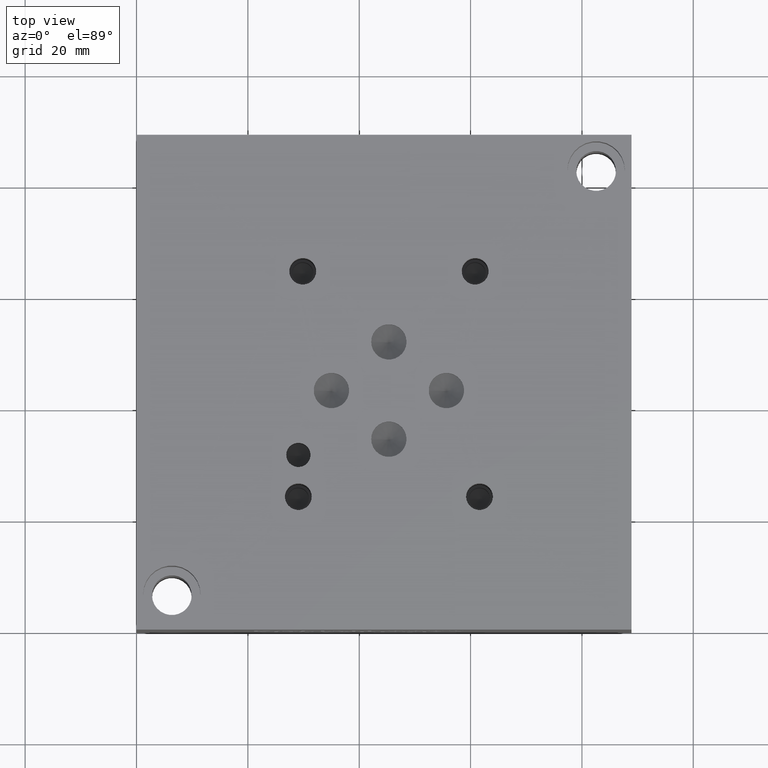
[diagram: clean part render]
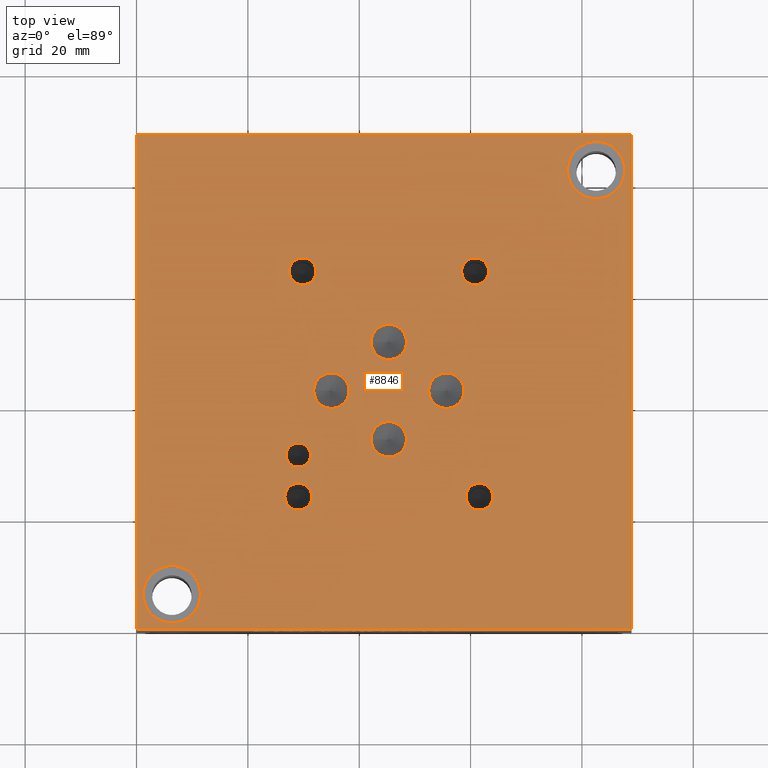
[diagram: same view with one face highlighted and labeled with its STEP entity id]
A machine part, top view. The second image highlights one B-rep face of the part: STEP entity #8846.
In plain terms, the highlighted planar face has unit normal (0, 0, 1).
Its self-contained STEP definition (entity closure, byte-faithful):
#85=CIRCLE('',#9174,5.1562);
#86=CIRCLE('',#9175,5.1562);
#90=CIRCLE('',#9182,5.1562);
#91=CIRCLE('',#9183,5.1562);
#94=CIRCLE('',#9189,3.175);
#95=CIRCLE('',#9190,3.175);
#98=CIRCLE('',#9195,3.175);
#99=CIRCLE('',#9196,3.175);
#102=CIRCLE('',#9201,3.175);
#103=CIRCLE('',#9202,3.175);
#106=CIRCLE('',#9207,3.175);
#107=CIRCLE('',#9208,3.175);
#110=CIRCLE('',#9213,2.1844);
#111=CIRCLE('',#9214,2.1844);
#117=CIRCLE('',#9223,2.413);
#118=CIRCLE('',#9224,2.413);
#124=CIRCLE('',#9234,2.413);
#125=CIRCLE('',#9235,2.413);
#131=CIRCLE('',#9245,2.413);
#132=CIRCLE('',#9246,2.413);
#138=CIRCLE('',#9256,2.413);
#139=CIRCLE('',#9257,2.413);
#193=FACE_BOUND('',#1431,.T.);
#194=FACE_BOUND('',#1432,.T.);
#195=FACE_BOUND('',#1433,.T.);
#196=FACE_BOUND('',#1434,.T.);
#197=FACE_BOUND('',#1435,.T.);
#198=FACE_BOUND('',#1436,.T.);
#199=FACE_BOUND('',#1437,.T.);
#200=FACE_BOUND('',#1438,.T.);
#201=FACE_BOUND('',#1439,.T.);
#202=FACE_BOUND('',#1440,.T.);
#203=FACE_BOUND('',#1441,.T.);
#479=PLANE('',#9263);
#928=FACE_OUTER_BOUND('',#1430,.T.);
#1430=EDGE_LOOP('',(#7855,#7856,#7857,#7858));
#1431=EDGE_LOOP('',(#7859,#7860));
#1432=EDGE_LOOP('',(#7861,#7862));
#1433=EDGE_LOOP('',(#7863,#7864));
#1434=EDGE_LOOP('',(#7865,#7866));
#1435=EDGE_LOOP('',(#7867,#7868));
#1436=EDGE_LOOP('',(#7869,#7870));
#1437=EDGE_LOOP('',(#7871,#7872));
#1438=EDGE_LOOP('',(#7873,#7874));
#1439=EDGE_LOOP('',(#7875,#7876));
#1440=EDGE_LOOP('',(#7877,#7878));
#1441=EDGE_LOOP('',(#7879,#7880));
#1877=LINE('',#13979,#2733);
#2294=LINE('',#15147,#3150);
#2296=LINE('',#15151,#3152);
#2298=LINE('',#15154,#3154);
#2733=VECTOR('',#9959,10.);
#3150=VECTOR('',#10914,10.);
#3152=VECTOR('',#10918,10.);
#3154=VECTOR('',#10922,10.);
#3891=VERTEX_POINT('',#13976);
#3892=VERTEX_POINT('',#13978);
#4182=VERTEX_POINT('',#14970);
#4183=VERTEX_POINT('',#14971);
#4187=VERTEX_POINT('',#14985);
#4188=VERTEX_POINT('',#14986);
#4192=VERTEX_POINT('',#15000);
#4193=VERTEX_POINT('',#15001);
#4197=VERTEX_POINT('',#15013);
#4198=VERTEX_POINT('',#15014);
#4202=VERTEX_POINT('',#15026);
#4203=VERTEX_POINT('',#15027);
#4207=VERTEX_POINT('',#15039);
#4208=VERTEX_POINT('',#15040);
#4212=VERTEX_POINT('',#15052);
#4213=VERTEX_POINT('',#15053);
#4220=VERTEX_POINT('',#15072);
#4221=VERTEX_POINT('',#15073);
#4228=VERTEX_POINT('',#15094);
#4229=VERTEX_POINT('',#15095);
#4236=VERTEX_POINT('',#15116);
#4237=VERTEX_POINT('',#15117);
#4244=VERTEX_POINT('',#15138);
#4245=VERTEX_POINT('',#15139);
#4246=VERTEX_POINT('',#15146);
#4247=VERTEX_POINT('',#15150);
#4944=EDGE_CURVE('',#3892,#3891,#1877,.T.);
#5374=EDGE_CURVE('',#4182,#4183,#85,.T.);
#5375=EDGE_CURVE('',#4183,#4182,#86,.T.);
#5381=EDGE_CURVE('',#4187,#4188,#90,.T.);
#5382=EDGE_CURVE('',#4188,#4187,#91,.T.);
#5388=EDGE_CURVE('',#4192,#4193,#94,.T.);
#5389=EDGE_CURVE('',#4193,#4192,#95,.T.);
#5394=EDGE_CURVE('',#4197,#4198,#98,.T.);
#5395=EDGE_CURVE('',#4198,#4197,#99,.T.);
#5400=EDGE_CURVE('',#4202,#4203,#102,.T.);
#5401=EDGE_CURVE('',#4203,#4202,#103,.T.);
#5406=EDGE_CURVE('',#4207,#4208,#106,.T.);
#5407=EDGE_CURVE('',#4208,#4207,#107,.T.);
#5412=EDGE_CURVE('',#4212,#4213,#110,.T.);
#5413=EDGE_CURVE('',#4213,#4212,#111,.T.);
#5421=EDGE_CURVE('',#4220,#4221,#117,.T.);
#5422=EDGE_CURVE('',#4221,#4220,#118,.T.);
#5431=EDGE_CURVE('',#4228,#4229,#124,.T.);
#5432=EDGE_CURVE('',#4229,#4228,#125,.T.);
#5441=EDGE_CURVE('',#4236,#4237,#131,.T.);
#5442=EDGE_CURVE('',#4237,#4236,#132,.T.);
#5451=EDGE_CURVE('',#4244,#4245,#138,.T.);
#5452=EDGE_CURVE('',#4245,#4244,#139,.T.);
#5455=EDGE_CURVE('',#4246,#3892,#2294,.T.);
#5457=EDGE_CURVE('',#4247,#4246,#2296,.T.);
#5459=EDGE_CURVE('',#3891,#4247,#2298,.T.);
#7855=ORIENTED_EDGE('',*,*,#4944,.T.);
#7856=ORIENTED_EDGE('',*,*,#5459,.T.);
#7857=ORIENTED_EDGE('',*,*,#5457,.T.);
#7858=ORIENTED_EDGE('',*,*,#5455,.T.);
#7859=ORIENTED_EDGE('',*,*,#5374,.T.);
#7860=ORIENTED_EDGE('',*,*,#5375,.T.);
#7861=ORIENTED_EDGE('',*,*,#5381,.T.);
#7862=ORIENTED_EDGE('',*,*,#5382,.T.);
#7863=ORIENTED_EDGE('',*,*,#5388,.T.);
#7864=ORIENTED_EDGE('',*,*,#5389,.T.);
#7865=ORIENTED_EDGE('',*,*,#5394,.T.);
#7866=ORIENTED_EDGE('',*,*,#5395,.T.);
#7867=ORIENTED_EDGE('',*,*,#5400,.T.);
#7868=ORIENTED_EDGE('',*,*,#5401,.T.);
#7869=ORIENTED_EDGE('',*,*,#5406,.T.);
#7870=ORIENTED_EDGE('',*,*,#5407,.T.);
#7871=ORIENTED_EDGE('',*,*,#5412,.T.);
#7872=ORIENTED_EDGE('',*,*,#5413,.T.);
#7873=ORIENTED_EDGE('',*,*,#5421,.T.);
#7874=ORIENTED_EDGE('',*,*,#5422,.T.);
#7875=ORIENTED_EDGE('',*,*,#5431,.T.);
#7876=ORIENTED_EDGE('',*,*,#5432,.T.);
#7877=ORIENTED_EDGE('',*,*,#5441,.T.);
#7878=ORIENTED_EDGE('',*,*,#5442,.T.);
#7879=ORIENTED_EDGE('',*,*,#5451,.T.);
#7880=ORIENTED_EDGE('',*,*,#5452,.T.);
#8846=ADVANCED_FACE('',(#928,#193,#194,#195,#196,#197,#198,#199,#200,#201,
#202,#203),#479,.T.);
#9174=AXIS2_PLACEMENT_3D('',#14972,#10716,#10717);
#9175=AXIS2_PLACEMENT_3D('',#14973,#10718,#10719);
#9182=AXIS2_PLACEMENT_3D('',#14987,#10734,#10735);
#9183=AXIS2_PLACEMENT_3D('',#14988,#10736,#10737);
#9189=AXIS2_PLACEMENT_3D('',#15002,#10751,#10752);
#9190=AXIS2_PLACEMENT_3D('',#15003,#10753,#10754);
#9195=AXIS2_PLACEMENT_3D('',#15015,#10765,#10766);
#9196=AXIS2_PLACEMENT_3D('',#15016,#10767,#10768);
#9201=AXIS2_PLACEMENT_3D('',#15028,#10779,#10780);
#9202=AXIS2_PLACEMENT_3D('',#15029,#10781,#10782);
#9207=AXIS2_PLACEMENT_3D('',#15041,#10793,#10794);
#9208=AXIS2_PLACEMENT_3D('',#15042,#10795,#10796);
#9213=AXIS2_PLACEMENT_3D('',#15054,#10807,#10808);
#9214=AXIS2_PLACEMENT_3D('',#15055,#10809,#10810);
#9223=AXIS2_PLACEMENT_3D('',#15074,#10829,#10830);
#9224=AXIS2_PLACEMENT_3D('',#15075,#10831,#10832);
#9234=AXIS2_PLACEMENT_3D('',#15096,#10854,#10855);
#9235=AXIS2_PLACEMENT_3D('',#15097,#10856,#10857);
#9245=AXIS2_PLACEMENT_3D('',#15118,#10879,#10880);
#9246=AXIS2_PLACEMENT_3D('',#15119,#10881,#10882);
#9256=AXIS2_PLACEMENT_3D('',#15140,#10904,#10905);
#9257=AXIS2_PLACEMENT_3D('',#15141,#10906,#10907);
#9263=AXIS2_PLACEMENT_3D('',#15156,#10925,#10926);
#9959=DIRECTION('',(1.,0.,0.));
#10716=DIRECTION('center_axis',(0.,0.,-1.));
#10717=DIRECTION('ref_axis',(1.,0.,0.));
#10718=DIRECTION('center_axis',(0.,0.,-1.));
#10719=DIRECTION('ref_axis',(1.,0.,0.));
#10734=DIRECTION('center_axis',(0.,0.,-1.));
#10735=DIRECTION('ref_axis',(1.,0.,0.));
#10736=DIRECTION('center_axis',(0.,0.,-1.));
#10737=DIRECTION('ref_axis',(1.,0.,0.));
#10751=DIRECTION('center_axis',(0.,0.,-1.));
#10752=DIRECTION('ref_axis',(1.,0.,0.));
#10753=DIRECTION('center_axis',(0.,0.,-1.));
#10754=DIRECTION('ref_axis',(1.,0.,0.));
#10765=DIRECTION('center_axis',(0.,0.,-1.));
#10766=DIRECTION('ref_axis',(1.,0.,0.));
#10767=DIRECTION('center_axis',(0.,0.,-1.));
#10768=DIRECTION('ref_axis',(1.,0.,0.));
#10779=DIRECTION('center_axis',(0.,0.,-1.));
#10780=DIRECTION('ref_axis',(1.,0.,0.));
#10781=DIRECTION('center_axis',(0.,0.,-1.));
#10782=DIRECTION('ref_axis',(1.,0.,0.));
#10793=DIRECTION('center_axis',(0.,0.,-1.));
#10794=DIRECTION('ref_axis',(1.,0.,0.));
#10795=DIRECTION('center_axis',(0.,0.,-1.));
#10796=DIRECTION('ref_axis',(1.,0.,0.));
#10807=DIRECTION('center_axis',(0.,0.,-1.));
#10808=DIRECTION('ref_axis',(1.,0.,0.));
#10809=DIRECTION('center_axis',(0.,0.,-1.));
#10810=DIRECTION('ref_axis',(1.,0.,0.));
#10829=DIRECTION('center_axis',(0.,0.,-1.));
#10830=DIRECTION('ref_axis',(1.,0.,0.));
#10831=DIRECTION('center_axis',(0.,0.,-1.));
#10832=DIRECTION('ref_axis',(1.,0.,0.));
#10854=DIRECTION('center_axis',(0.,0.,-1.));
#10855=DIRECTION('ref_axis',(1.,0.,0.));
#10856=DIRECTION('center_axis',(0.,0.,-1.));
#10857=DIRECTION('ref_axis',(1.,0.,0.));
#10879=DIRECTION('center_axis',(0.,0.,-1.));
#10880=DIRECTION('ref_axis',(1.,0.,0.));
#10881=DIRECTION('center_axis',(0.,0.,-1.));
#10882=DIRECTION('ref_axis',(1.,0.,0.));
#10904=DIRECTION('center_axis',(0.,0.,-1.));
#10905=DIRECTION('ref_axis',(1.,0.,0.));
#10906=DIRECTION('center_axis',(0.,0.,-1.));
#10907=DIRECTION('ref_axis',(1.,0.,0.));
#10914=DIRECTION('',(0.,-1.,0.));
#10918=DIRECTION('',(-1.,0.,0.));
#10922=DIRECTION('',(0.,1.,0.));
#10925=DIRECTION('center_axis',(0.,0.,1.));
#10926=DIRECTION('ref_axis',(1.,0.,0.));
#13976=CARTESIAN_POINT('',(88.9,0.,38.1));
#13978=CARTESIAN_POINT('',(0.,0.,38.1));
#13979=CARTESIAN_POINT('',(0.,0.,38.1));
#14970=CARTESIAN_POINT('',(11.5062,6.35,38.1));
#14971=CARTESIAN_POINT('',(1.1938,6.35,38.1));
#14972=CARTESIAN_POINT('Origin',(6.35,6.35,38.1));
#14973=CARTESIAN_POINT('Origin',(6.35,6.35,38.1));
#14985=CARTESIAN_POINT('',(87.7062,82.55,38.1));
#14986=CARTESIAN_POINT('',(77.3938,82.55,38.1));
#14987=CARTESIAN_POINT('Origin',(82.55,82.55,38.1));
#14988=CARTESIAN_POINT('Origin',(82.55,82.55,38.1));
#15000=CARTESIAN_POINT('',(48.4886,51.6636,38.1));
#15001=CARTESIAN_POINT('',(42.1386,51.6636,38.1));
#15002=CARTESIAN_POINT('Origin',(45.3136,51.6636,38.1));
#15003=CARTESIAN_POINT('Origin',(45.3136,51.6636,38.1));
#15013=CARTESIAN_POINT('',(38.1762,42.926,38.1));
#15014=CARTESIAN_POINT('',(31.8262,42.926,38.1));
#15015=CARTESIAN_POINT('Origin',(35.0012,42.926,38.1));
#15016=CARTESIAN_POINT('Origin',(35.0012,42.926,38.1));
#15026=CARTESIAN_POINT('',(58.8264,42.926,38.1));
#15027=CARTESIAN_POINT('',(52.4764,42.926,38.1));
#15028=CARTESIAN_POINT('Origin',(55.6514,42.926,38.1));
#15029=CARTESIAN_POINT('Origin',(55.6514,42.926,38.1));
#15039=CARTESIAN_POINT('',(48.4886,34.1884,38.1));
#15040=CARTESIAN_POINT('',(42.1386,34.1884,38.1));
#15041=CARTESIAN_POINT('Origin',(45.3136,34.1884,38.1));
#15042=CARTESIAN_POINT('Origin',(45.3136,34.1884,38.1));
#15052=CARTESIAN_POINT('',(31.242,31.369,38.1));
#15053=CARTESIAN_POINT('',(26.8732,31.369,38.1));
#15054=CARTESIAN_POINT('Origin',(29.0576,31.369,38.1));
#15055=CARTESIAN_POINT('Origin',(29.0576,31.369,38.1));
#15072=CARTESIAN_POINT('',(64.008,23.876,38.1));
#15073=CARTESIAN_POINT('',(59.182,23.876,38.1));
#15074=CARTESIAN_POINT('Origin',(61.595,23.876,38.1));
#15075=CARTESIAN_POINT('Origin',(61.595,23.876,38.1));
#15094=CARTESIAN_POINT('',(32.258,64.3636,38.1));
#15095=CARTESIAN_POINT('',(27.432,64.3636,38.1));
#15096=CARTESIAN_POINT('Origin',(29.845,64.3636,38.1));
#15097=CARTESIAN_POINT('Origin',(29.845,64.3636,38.1));
#15116=CARTESIAN_POINT('',(63.2206,64.3636,38.1));
#15117=CARTESIAN_POINT('',(58.3946,64.3636,38.1));
#15118=CARTESIAN_POINT('Origin',(60.8076,64.3636,38.1));
#15119=CARTESIAN_POINT('Origin',(60.8076,64.3636,38.1));
#15138=CARTESIAN_POINT('',(31.4706,23.876,38.1));
#15139=CARTESIAN_POINT('',(26.6446,23.876,38.1));
#15140=CARTESIAN_POINT('Origin',(29.0576,23.876,38.1));
#15141=CARTESIAN_POINT('Origin',(29.0576,23.876,38.1));
#15146=CARTESIAN_POINT('',(0.,88.9,38.1));
#15147=CARTESIAN_POINT('',(0.,88.9,38.1));
#15150=CARTESIAN_POINT('',(88.9,88.9,38.1));
#15151=CARTESIAN_POINT('',(88.9,88.9,38.1));
#15154=CARTESIAN_POINT('',(88.9,0.,38.1));
#15156=CARTESIAN_POINT('Origin',(44.45,44.45,38.1));